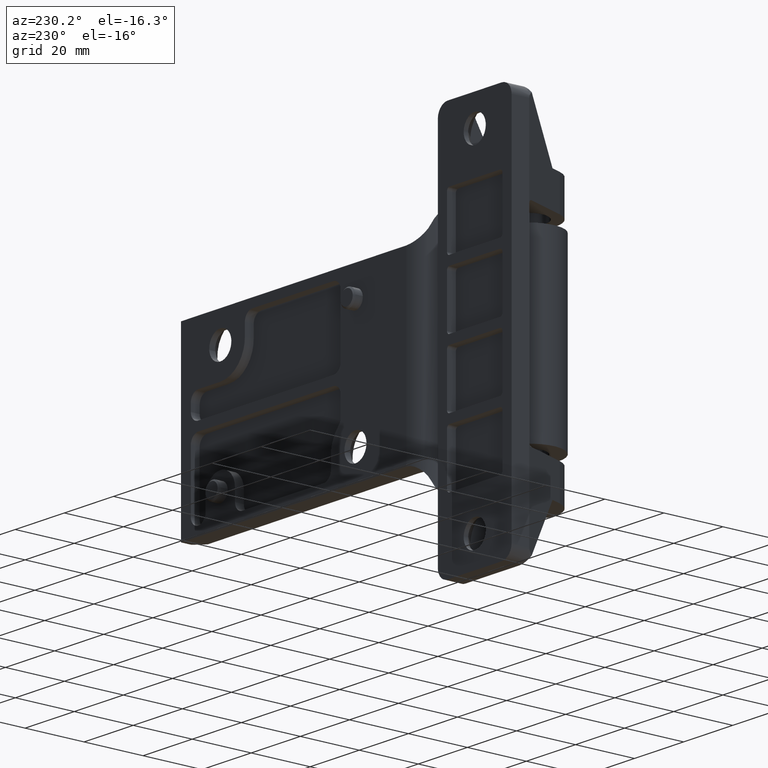
[diagram: clean part render]
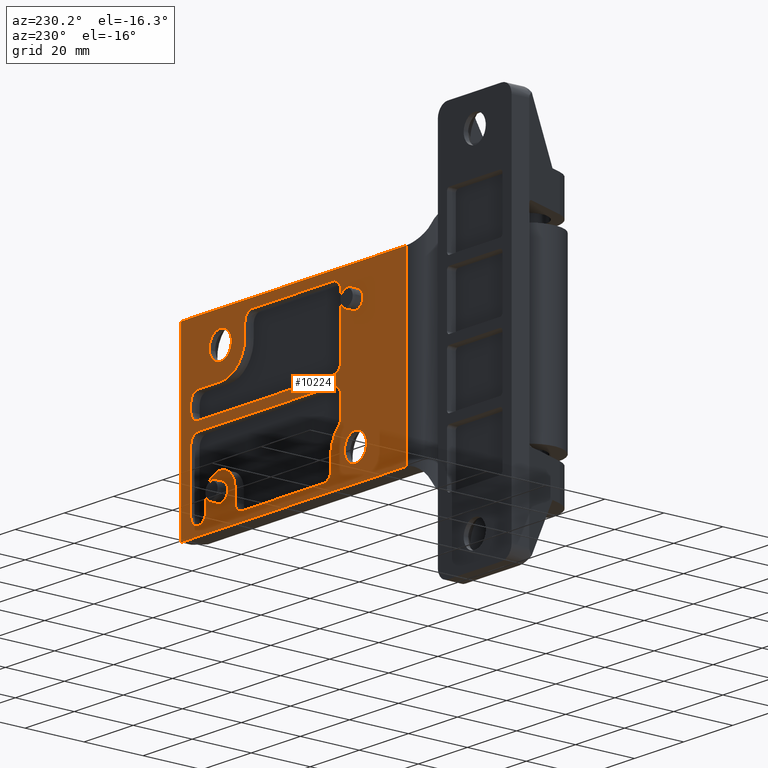
[diagram: same view with one face highlighted and labeled with its STEP entity id]
A machine part, auxiliary view. The second image highlights one B-rep face of the part: STEP entity #10224.
In plain terms, the highlighted face is a freeform B-spline surface patch.
Its self-contained STEP definition (entity closure, byte-faithful):
#6236=CARTESIAN_POINT('',(102.579676197070300,16.300000831205349,16.206336054302739));
#6237=VERTEX_POINT('',#6236);
#6243=CARTESIAN_POINT('',(105.000004882553000,16.300000831205349,24.500016668111929));
#6244=VERTEX_POINT('',#6243);
#6245=CARTESIAN_POINT('',(105.000004882553000,16.300000831205349,24.500016668111929));
#6246=CARTESIAN_POINT('',(100.500004668814230,16.300000831205342,24.500016668111925));
#6247=CARTESIAN_POINT('',(100.500004668814200,16.300000831205349,20.000016454373149));
#6248=CARTESIAN_POINT('',(100.500004668814210,16.300000831205356,17.533144885160251));
#6249=CARTESIAN_POINT('',(102.579676197070270,16.300000831205352,16.206336054302746));
#6257=(BOUNDED_CURVE()B_SPLINE_CURVE(2,(#6245,#6246,#6247,#6248,#6249),.UNSPECIFIED.,.F.,.U.)B_SPLINE_CURVE_WITH_KNOTS((3,2,3),(0.0,0.250000000000000,0.407950112626341),.UNSPECIFIED.)CURVE()GEOMETRIC_REPRESENTATION_ITEM()RATIONAL_B_SPLINE_CURVE((1.0,0.707106781186548,1.0,0.814949932403695,0.863729296954177))REPRESENTATION_ITEM(''));
#6258=EDGE_CURVE('',#6244,#6237,#6257,.T.);
#6260=CARTESIAN_POINT('',(109.486133097415110,16.300000831205349,19.646950506613479));
#6261=VERTEX_POINT('',#6260);
#6262=CARTESIAN_POINT('',(109.486133097415110,16.300000831205349,19.646950506613486));
#6263=CARTESIAN_POINT('',(109.500005096291840,16.300000831205345,19.823210964225211));
#6264=CARTESIAN_POINT('',(109.500005096291800,16.300000831205349,20.000016454373149));
#6265=CARTESIAN_POINT('',(109.500005096291790,16.300000831205342,24.500016668111925));
#6266=CARTESIAN_POINT('',(105.000004882553000,16.300000831205349,24.500016668111929));
#6274=(BOUNDED_CURVE()B_SPLINE_CURVE(2,(#6262,#6263,#6264,#6265,#6266),.UNSPECIFIED.,.F.,.U.)B_SPLINE_CURVE_WITH_KNOTS((3,2,3),(0.736331300616365,0.750000000000000,1.0),.UNSPECIFIED.)CURVE()GEOMETRIC_REPRESENTATION_ITEM()RATIONAL_B_SPLINE_CURVE((0.969723356137586,0.983986122562135,1.0,0.707106781186548,1.0))REPRESENTATION_ITEM(''));
#6275=EDGE_CURVE('',#6261,#6244,#6274,.T.);
#6379=CARTESIAN_POINT('',(105.000004882553000,16.300000831205349,15.500016240634370));
#6380=VERTEX_POINT('',#6379);
#6381=CARTESIAN_POINT('',(105.000004882553000,16.300000831205349,15.500016240634370));
#6382=CARTESIAN_POINT('',(109.159762292193800,16.300000831205349,15.500016240634379));
#6383=CARTESIAN_POINT('',(109.486133097415110,16.300000831205349,19.646950506613486));
#6391=(BOUNDED_CURVE()B_SPLINE_CURVE(2,(#6381,#6382,#6383),.UNSPECIFIED.,.F.,.U.)B_SPLINE_CURVE_WITH_KNOTS((3,3),(0.500000000000000,0.736331300616366),.UNSPECIFIED.)CURVE()GEOMETRIC_REPRESENTATION_ITEM()RATIONAL_B_SPLINE_CURVE((1.0,0.723120658624412,0.969723356137588))REPRESENTATION_ITEM(''));
#6392=EDGE_CURVE('',#6380,#6261,#6391,.T.);
#6394=CARTESIAN_POINT('',(102.579676197070270,16.300000831205352,16.206336054302746));
#6395=CARTESIAN_POINT('',(103.686778570951690,16.300000831205349,15.500016240634377));
#6396=CARTESIAN_POINT('',(105.000004882553000,16.300000831205349,15.500016240634370));
#6404=(BOUNDED_CURVE()B_SPLINE_CURVE(2,(#6394,#6395,#6396),.UNSPECIFIED.,.F.,.U.)B_SPLINE_CURVE_WITH_KNOTS((3,3),(0.407950112626341,0.500000000000000),.UNSPECIFIED.)CURVE()GEOMETRIC_REPRESENTATION_ITEM()RATIONAL_B_SPLINE_CURVE((0.863729296954177,0.892156848782853,1.0))REPRESENTATION_ITEM(''));
#6405=EDGE_CURVE('',#6237,#6380,#6404,.T.);
#6580=CARTESIAN_POINT('',(47.579673584710449,16.300000831205349,-23.793665845595310));
#6581=VERTEX_POINT('',#6580);
#6587=CARTESIAN_POINT('',(50.000002270193193,16.300000831205349,-15.499985231786120));
#6588=VERTEX_POINT('',#6587);
#6589=CARTESIAN_POINT('',(50.000002270193193,16.300000831205349,-15.499985231786120));
#6590=CARTESIAN_POINT('',(45.500002056454413,16.300000831205342,-15.499985231786123));
#6591=CARTESIAN_POINT('',(45.500002056454413,16.300000831205349,-19.999985445524899));
#6592=CARTESIAN_POINT('',(45.500002056454413,16.300000831205345,-22.466857014737805));
#6593=CARTESIAN_POINT('',(47.579673584710449,16.300000831205352,-23.793665845595310));
#6601=(BOUNDED_CURVE()B_SPLINE_CURVE(2,(#6589,#6590,#6591,#6592,#6593),.UNSPECIFIED.,.F.,.U.)B_SPLINE_CURVE_WITH_KNOTS((3,2,3),(0.0,0.250000000000000,0.407950112626342),.UNSPECIFIED.)CURVE()GEOMETRIC_REPRESENTATION_ITEM()RATIONAL_B_SPLINE_CURVE((1.0,0.707106781186548,1.0,0.814949932403694,0.863729296954177))REPRESENTATION_ITEM(''));
#6602=EDGE_CURVE('',#6588,#6581,#6601,.T.);
#6604=CARTESIAN_POINT('',(54.486130485055277,16.300000831205349,-20.353051393284570));
#6605=VERTEX_POINT('',#6604);
#6606=CARTESIAN_POINT('',(54.486130485055284,16.300000831205356,-20.353051393284577));
#6607=CARTESIAN_POINT('',(54.500002483931986,16.300000831205349,-20.176790935672852));
#6608=CARTESIAN_POINT('',(54.500002483931979,16.300000831205349,-19.999985445524899));
#6609=CARTESIAN_POINT('',(54.500002483931986,16.300000831205342,-15.499985231786123));
#6610=CARTESIAN_POINT('',(50.000002270193193,16.300000831205349,-15.499985231786120));
#6618=(BOUNDED_CURVE()B_SPLINE_CURVE(2,(#6606,#6607,#6608,#6609,#6610),.UNSPECIFIED.,.F.,.U.)B_SPLINE_CURVE_WITH_KNOTS((3,2,3),(0.736331300616365,0.750000000000000,1.0),.UNSPECIFIED.)CURVE()GEOMETRIC_REPRESENTATION_ITEM()RATIONAL_B_SPLINE_CURVE((0.969723356137586,0.983986122562134,1.0,0.707106781186548,1.0))REPRESENTATION_ITEM(''));
#6619=EDGE_CURVE('',#6605,#6588,#6618,.T.);
#6723=CARTESIAN_POINT('',(50.000002270193193,16.300000831205349,-24.499985659263679));
#6724=VERTEX_POINT('',#6723);
#6725=CARTESIAN_POINT('',(50.000002270193193,16.300000831205349,-24.499985659263679));
#6726=CARTESIAN_POINT('',(54.159759679833947,16.300000831205345,-24.499985659263679));
#6727=CARTESIAN_POINT('',(54.486130485055277,16.300000831205352,-20.353051393284577));
#6735=(BOUNDED_CURVE()B_SPLINE_CURVE(2,(#6725,#6726,#6727),.UNSPECIFIED.,.F.,.U.)B_SPLINE_CURVE_WITH_KNOTS((3,3),(0.500000000000000,0.736331300616364),.UNSPECIFIED.)CURVE()GEOMETRIC_REPRESENTATION_ITEM()RATIONAL_B_SPLINE_CURVE((1.0,0.723120658624414,0.969723356137583))REPRESENTATION_ITEM(''));
#6736=EDGE_CURVE('',#6724,#6605,#6735,.T.);
#6738=CARTESIAN_POINT('',(47.579673584710442,16.300000831205349,-23.793665845595317));
#6739=CARTESIAN_POINT('',(48.686775958591888,16.300000831205352,-24.499985659263682));
#6740=CARTESIAN_POINT('',(50.000002270193193,16.300000831205349,-24.499985659263679));
#6748=(BOUNDED_CURVE()B_SPLINE_CURVE(2,(#6738,#6739,#6740),.UNSPECIFIED.,.F.,.U.)B_SPLINE_CURVE_WITH_KNOTS((3,3),(0.407950112626342,0.500000000000000),.UNSPECIFIED.)CURVE()GEOMETRIC_REPRESENTATION_ITEM()RATIONAL_B_SPLINE_CURVE((0.863729296954177,0.892156848782854,1.0))REPRESENTATION_ITEM(''));
#6749=EDGE_CURVE('',#6581,#6724,#6748,.T.);
#7111=CARTESIAN_POINT('',(107.990757025791300,16.300000831205349,-20.235362744067761));
#7112=VERTEX_POINT('',#7111);
#7118=CARTESIAN_POINT('',(105.000004882553000,16.300000831205349,-22.999985588017228));
#7119=VERTEX_POINT('',#7118);
#7120=CARTESIAN_POINT('',(105.000004882553000,16.300000831205349,-22.999985588017228));
#7121=CARTESIAN_POINT('',(107.773176488912260,16.300000831205359,-22.999985588017228));
#7122=CARTESIAN_POINT('',(107.990757025791300,16.300000831205356,-20.235362744067768));
#7130=(BOUNDED_CURVE()B_SPLINE_CURVE(2,(#7120,#7121,#7122),.UNSPECIFIED.,.F.,.U.)B_SPLINE_CURVE_WITH_KNOTS((3,3),(0.0,0.236331300612189),.UNSPECIFIED.)CURVE()GEOMETRIC_REPRESENTATION_ITEM()RATIONAL_B_SPLINE_CURVE((1.0,0.723120658629306,0.969723356128870))REPRESENTATION_ITEM(''));
#7131=EDGE_CURVE('',#7119,#7112,#7130,.T.);
#7133=CARTESIAN_POINT('',(102.009252739314700,16.300000831205349,-19.764608146982031));
#7134=VERTEX_POINT('',#7133);
#7135=CARTESIAN_POINT('',(102.009252739314690,16.300000831205349,-19.764608146982031));
#7136=CARTESIAN_POINT('',(102.000004740060720,16.300000831205352,-19.882115118723014));
#7137=CARTESIAN_POINT('',(102.000004740060700,16.300000831205349,-19.999985445524899));
#7138=CARTESIAN_POINT('',(102.000004740060690,16.300000831205342,-22.999985588017232));
#7139=CARTESIAN_POINT('',(105.000004882553000,16.300000831205349,-22.999985588017228));
#7147=(BOUNDED_CURVE()B_SPLINE_CURVE(2,(#7135,#7136,#7137,#7138,#7139),.UNSPECIFIED.,.F.,.U.)B_SPLINE_CURVE_WITH_KNOTS((3,2,3),(0.736331300612188,0.750000000000000,1.0),.UNSPECIFIED.)CURVE()GEOMETRIC_REPRESENTATION_ITEM()RATIONAL_B_SPLINE_CURVE((0.969723356128870,0.983986122557242,1.0,0.707106781186548,1.0))REPRESENTATION_ITEM(''));
#7148=EDGE_CURVE('',#7134,#7119,#7147,.T.);
#7181=CARTESIAN_POINT('',(105.000004882553000,16.300000831205349,-16.999985303032570));
#7182=VERTEX_POINT('',#7181);
#7183=CARTESIAN_POINT('',(105.000004882553000,16.300000831205349,-16.999985303032570));
#7184=CARTESIAN_POINT('',(102.226833276193740,16.300000831205345,-16.999985303032570));
#7185=CARTESIAN_POINT('',(102.009252739314690,16.300000831205356,-19.764608146982034));
#7193=(BOUNDED_CURVE()B_SPLINE_CURVE(2,(#7183,#7184,#7185),.UNSPECIFIED.,.F.,.U.)B_SPLINE_CURVE_WITH_KNOTS((3,3),(0.500000000000000,0.736331300612189),.UNSPECIFIED.)CURVE()GEOMETRIC_REPRESENTATION_ITEM()RATIONAL_B_SPLINE_CURVE((1.0,0.723120658629305,0.969723356128871))REPRESENTATION_ITEM(''));
#7194=EDGE_CURVE('',#7182,#7134,#7193,.T.);
#7196=CARTESIAN_POINT('',(107.990757025791300,16.300000831205345,-20.235362744067768));
#7197=CARTESIAN_POINT('',(108.000005025045350,16.300000831205349,-20.117855772326788));
#7198=CARTESIAN_POINT('',(108.000005025045300,16.300000831205349,-19.999985445524899));
#7199=CARTESIAN_POINT('',(108.000005025045330,16.300000831205342,-16.999985303032574));
#7200=CARTESIAN_POINT('',(105.000004882553000,16.300000831205349,-16.999985303032570));
#7208=(BOUNDED_CURVE()B_SPLINE_CURVE(2,(#7196,#7197,#7198,#7199,#7200),.UNSPECIFIED.,.F.,.U.)B_SPLINE_CURVE_WITH_KNOTS((3,2,3),(0.236331300612188,0.250000000000000,0.500000000000000),.UNSPECIFIED.)CURVE()GEOMETRIC_REPRESENTATION_ITEM()RATIONAL_B_SPLINE_CURVE((0.969723356128870,0.983986122557242,1.0,0.707106781186548,1.0))REPRESENTATION_ITEM(''));
#7209=EDGE_CURVE('',#7112,#7182,#7208,.T.);
#7443=CARTESIAN_POINT('',(52.990754413431517,16.300000831205349,19.764639155830341));
#7444=VERTEX_POINT('',#7443);
#7450=CARTESIAN_POINT('',(50.000002270193193,16.300000831205349,17.000016311880870));
#7451=VERTEX_POINT('',#7450);
#7452=CARTESIAN_POINT('',(50.000002270193193,16.300000831205349,17.000016311880870));
#7453=CARTESIAN_POINT('',(52.773173876552441,16.300000831205342,17.000016311880874));
#7454=CARTESIAN_POINT('',(52.990754413431524,16.300000831205345,19.764639155830334));
#7462=(BOUNDED_CURVE()B_SPLINE_CURVE(2,(#7452,#7453,#7454),.UNSPECIFIED.,.F.,.U.)B_SPLINE_CURVE_WITH_KNOTS((3,3),(0.0,0.236331300612188),.UNSPECIFIED.)CURVE()GEOMETRIC_REPRESENTATION_ITEM()RATIONAL_B_SPLINE_CURVE((1.0,0.723120658629306,0.969723356128870))REPRESENTATION_ITEM(''));
#7463=EDGE_CURVE('',#7451,#7444,#7462,.T.);
#7465=CARTESIAN_POINT('',(47.009250126954868,16.300000831205349,20.235393752916071));
#7466=VERTEX_POINT('',#7465);
#7467=CARTESIAN_POINT('',(47.009250126954868,16.300000831205352,20.235393752916067));
#7468=CARTESIAN_POINT('',(47.000002127700867,16.300000831205352,20.117886781175091));
#7469=CARTESIAN_POINT('',(47.000002127700867,16.300000831205349,20.000016454373199));
#7470=CARTESIAN_POINT('',(47.000002127700867,16.300000831205342,17.000016311880877));
#7471=CARTESIAN_POINT('',(50.000002270193193,16.300000831205349,17.000016311880870));
#7479=(BOUNDED_CURVE()B_SPLINE_CURVE(2,(#7467,#7468,#7469,#7470,#7471),.UNSPECIFIED.,.F.,.U.)B_SPLINE_CURVE_WITH_KNOTS((3,2,3),(0.736331300612188,0.750000000000000,1.0),.UNSPECIFIED.)CURVE()GEOMETRIC_REPRESENTATION_ITEM()RATIONAL_B_SPLINE_CURVE((0.969723356128870,0.983986122557241,1.0,0.707106781186548,1.0))REPRESENTATION_ITEM(''));
#7480=EDGE_CURVE('',#7466,#7451,#7479,.T.);
#7513=CARTESIAN_POINT('',(50.000002270193193,16.300000831205349,23.000016596865532));
#7514=VERTEX_POINT('',#7513);
#7515=CARTESIAN_POINT('',(50.000002270193193,16.300000831205349,23.000016596865532));
#7516=CARTESIAN_POINT('',(47.226830663833944,16.300000831205345,23.000016596865532));
#7517=CARTESIAN_POINT('',(47.009250126954875,16.300000831205356,20.235393752916067));
#7525=(BOUNDED_CURVE()B_SPLINE_CURVE(2,(#7515,#7516,#7517),.UNSPECIFIED.,.F.,.U.)B_SPLINE_CURVE_WITH_KNOTS((3,3),(0.500000000000000,0.736331300612189),.UNSPECIFIED.)CURVE()GEOMETRIC_REPRESENTATION_ITEM()RATIONAL_B_SPLINE_CURVE((1.0,0.723120658629305,0.969723356128871))REPRESENTATION_ITEM(''));
#7526=EDGE_CURVE('',#7514,#7466,#7525,.T.);
#7528=CARTESIAN_POINT('',(52.990754413431532,16.300000831205349,19.764639155830334));
#7529=CARTESIAN_POINT('',(53.000002412685518,16.300000831205349,19.882146127571307));
#7530=CARTESIAN_POINT('',(53.000002412685532,16.300000831205349,20.000016454373199));
#7531=CARTESIAN_POINT('',(53.000002412685525,16.300000831205342,23.000016596865535));
#7532=CARTESIAN_POINT('',(50.000002270193193,16.300000831205349,23.000016596865532));
#7540=(BOUNDED_CURVE()B_SPLINE_CURVE(2,(#7528,#7529,#7530,#7531,#7532),.UNSPECIFIED.,.F.,.U.)B_SPLINE_CURVE_WITH_KNOTS((3,2,3),(0.236331300612188,0.250000000000000,0.500000000000000),.UNSPECIFIED.)CURVE()GEOMETRIC_REPRESENTATION_ITEM()RATIONAL_B_SPLINE_CURVE((0.969723356128870,0.983986122557242,1.0,0.707106781186548,1.0))REPRESENTATION_ITEM(''));
#7541=EDGE_CURVE('',#7444,#7514,#7540,.T.);
#7878=CARTESIAN_POINT('',(105.000004882677800,16.300000831205299,9.999984970550971));
#7879=VERTEX_POINT('',#7878);
#7880=CARTESIAN_POINT('',(114.000005310155000,16.300000831205349,9.999984970551029));
#7881=VERTEX_POINT('',#7880);
#7882=CARTESIAN_POINT('',(105.000004882677800,16.300000831205299,9.999984970550971));
#7883=CARTESIAN_POINT('',(114.000005310155000,16.300000831205349,9.999984970551029));
#7884=QUASI_UNIFORM_CURVE('',1,(#7882,#7883),.UNSPECIFIED.,.F.,.U.);
#7885=EDGE_CURVE('',#7879,#7881,#7884,.T.);
#7915=CARTESIAN_POINT('',(117.000005452647200,16.300000831205299,6.999984828058531));
#7916=VERTEX_POINT('',#7915);
#7917=CARTESIAN_POINT('',(114.000005310155000,16.300000831205299,9.999984970550941));
#7918=CARTESIAN_POINT('',(115.242646056296520,16.300000831205299,9.999984970550941));
#7919=CARTESIAN_POINT('',(116.121325754471900,16.300000831205299,9.121305272375512));
#7920=CARTESIAN_POINT('',(117.000005452647230,16.300000831205299,8.242625574200154));
#7921=CARTESIAN_POINT('',(117.000005452647200,16.300000831205299,6.999984828058700));
#7929=(BOUNDED_CURVE()B_SPLINE_CURVE(2,(#7917,#7918,#7919,#7920,#7921),.UNSPECIFIED.,.F.,.U.)B_SPLINE_CURVE_WITH_KNOTS((3,2,3),(0.0,0.500000000000000,1.0),.UNSPECIFIED.)CURVE()GEOMETRIC_REPRESENTATION_ITEM()RATIONAL_B_SPLINE_CURVE((1.0,0.923879532511281,1.0,0.923879532511281,1.0))REPRESENTATION_ITEM(''));
#7930=EDGE_CURVE('',#7881,#7916,#7929,.T.);
#7947=CARTESIAN_POINT('',(117.000005452647400,16.300000831205299,4.499984709315015));
#7948=VERTEX_POINT('',#7947);
#7949=CARTESIAN_POINT('',(117.000005452647200,16.300000831205299,6.999984828058531));
#7950=CARTESIAN_POINT('',(117.000005452647400,16.300000831205299,4.499984709315015));
#7951=QUASI_UNIFORM_CURVE('',1,(#7949,#7950),.UNSPECIFIED.,.F.,.U.);
#7952=EDGE_CURVE('',#7916,#7948,#7951,.T.);
#7978=CARTESIAN_POINT('',(114.000005310155000,16.300000831205299,1.499984566822676));
#7979=VERTEX_POINT('',#7978);
#7980=CARTESIAN_POINT('',(117.000005452647300,16.300000831205299,4.499984709315015));
#7981=CARTESIAN_POINT('',(117.000005452647340,16.300000831205303,1.499984566822675));
#7982=CARTESIAN_POINT('',(114.000005310155000,16.300000831205299,1.499984566822675));
#7990=(BOUNDED_CURVE()B_SPLINE_CURVE(2,(#7980,#7981,#7982),.UNSPECIFIED.,.F.,.U.)CURVE()GEOMETRIC_REPRESENTATION_ITEM()QUASI_UNIFORM_CURVE()RATIONAL_B_SPLINE_CURVE((1.0,0.707106781186548,1.0))REPRESENTATION_ITEM(''));
#7991=EDGE_CURVE('',#7948,#7979,#7990,.T.);
#8008=CARTESIAN_POINT('',(59.000002697795203,16.300000831205299,1.499984566822576));
#8009=VERTEX_POINT('',#8008);
#8010=CARTESIAN_POINT('',(114.000005310155000,16.300000831205299,1.499984566822676));
#8011=CARTESIAN_POINT('',(59.000002697795203,16.300000831205299,1.499984566822576));
#8012=QUASI_UNIFORM_CURVE('',1,(#8010,#8011),.UNSPECIFIED.,.F.,.U.);
#8013=EDGE_CURVE('',#7979,#8009,#8012,.T.);
#8039=CARTESIAN_POINT('',(56.000002555302800,16.300000831205299,4.499984709314981));
#8040=VERTEX_POINT('',#8039);
#8041=CARTESIAN_POINT('',(59.000002697795203,16.300000831205299,1.499984566822556));
#8042=CARTESIAN_POINT('',(56.000002555302785,16.300000831205303,1.499984566822556));
#8043=CARTESIAN_POINT('',(56.000002555302771,16.300000831205299,4.499984709314986));
#8051=(BOUNDED_CURVE()B_SPLINE_CURVE(2,(#8041,#8042,#8043),.UNSPECIFIED.,.F.,.U.)CURVE()GEOMETRIC_REPRESENTATION_ITEM()QUASI_UNIFORM_CURVE()RATIONAL_B_SPLINE_CURVE((1.0,0.707106781186548,1.0))REPRESENTATION_ITEM(''));
#8052=EDGE_CURVE('',#8009,#8040,#8051,.T.);
#8069=CARTESIAN_POINT('',(56.000002555302800,16.300000831205299,23.999985635515198));
#8070=VERTEX_POINT('',#8069);
#8071=CARTESIAN_POINT('',(56.000002555302800,16.300000831205299,4.499984709314981));
#8072=CARTESIAN_POINT('',(56.000002555302800,16.300000831205299,23.999985635515198));
#8073=QUASI_UNIFORM_CURVE('',1,(#8071,#8072),.UNSPECIFIED.,.F.,.U.);
#8074=EDGE_CURVE('',#8040,#8070,#8073,.T.);
#8100=CARTESIAN_POINT('',(59.000002697795097,16.300000831205299,26.999985778007549));
#8101=VERTEX_POINT('',#8100);
#8102=CARTESIAN_POINT('',(56.000002555302743,16.300000831205299,23.999985635515198));
#8103=CARTESIAN_POINT('',(56.000002555302743,16.300000831205303,26.999985778007559));
#8104=CARTESIAN_POINT('',(59.000002697795097,16.300000831205299,26.999985778007549));
#8112=(BOUNDED_CURVE()B_SPLINE_CURVE(2,(#8102,#8103,#8104),.UNSPECIFIED.,.F.,.U.)CURVE()GEOMETRIC_REPRESENTATION_ITEM()QUASI_UNIFORM_CURVE()RATIONAL_B_SPLINE_CURVE((1.0,0.707106781186548,1.0))REPRESENTATION_ITEM(''));
#8113=EDGE_CURVE('',#8070,#8101,#8112,.T.);
#8130=CARTESIAN_POINT('',(92.000004265211103,16.300000831205299,26.999985778007652));
#8131=VERTEX_POINT('',#8130);
#8132=CARTESIAN_POINT('',(59.000002697795097,16.300000831205299,26.999985778007549));
#8133=CARTESIAN_POINT('',(92.000004265211103,16.300000831205299,26.999985778007652));
#8134=QUASI_UNIFORM_CURVE('',1,(#8132,#8133),.UNSPECIFIED.,.F.,.U.);
#8135=EDGE_CURVE('',#8101,#8131,#8134,.T.);
#8161=CARTESIAN_POINT('',(95.000004407703400,16.300000831205299,23.999985635515252));
#8162=VERTEX_POINT('',#8161);
#8163=CARTESIAN_POINT('',(92.000004265211103,16.300000831205299,26.999985778007591));
#8164=CARTESIAN_POINT('',(95.000004407703443,16.300000831205303,26.999985778007591));
#8165=CARTESIAN_POINT('',(95.000004407703443,16.300000831205299,23.999985635515252));
#8173=(BOUNDED_CURVE()B_SPLINE_CURVE(2,(#8163,#8164,#8165),.UNSPECIFIED.,.F.,.U.)CURVE()GEOMETRIC_REPRESENTATION_ITEM()QUASI_UNIFORM_CURVE()RATIONAL_B_SPLINE_CURVE((1.0,0.707106781186548,1.0))REPRESENTATION_ITEM(''));
#8174=EDGE_CURVE('',#8131,#8162,#8173,.T.);
#8191=CARTESIAN_POINT('',(95.000004407703400,16.300000831205299,19.999985445742951));
#8192=VERTEX_POINT('',#8191);
#8193=CARTESIAN_POINT('',(95.000004407703400,16.300000831205299,23.999985635515252));
#8194=CARTESIAN_POINT('',(95.000004407703400,16.300000831205299,19.999985445742951));
#8195=QUASI_UNIFORM_CURVE('',1,(#8193,#8194),.UNSPECIFIED.,.F.,.U.);
#8196=EDGE_CURVE('',#8162,#8192,#8195,.T.);
#8222=CARTESIAN_POINT('',(105.000004882678000,16.300000831205299,9.999984970551028));
#8223=CARTESIAN_POINT('',(100.857869062142430,16.300000831205306,9.999984970551028));
#8224=CARTESIAN_POINT('',(97.928936734877908,16.300000831205299,12.928917297879300));
#8225=CARTESIAN_POINT('',(95.000004407613446,16.300000831205306,15.857849625207493));
#8226=CARTESIAN_POINT('',(95.000004407703486,16.300000831205299,19.999985445742951));
#8234=(BOUNDED_CURVE()B_SPLINE_CURVE(2,(#8222,#8223,#8224,#8225,#8226),.UNSPECIFIED.,.F.,.U.)B_SPLINE_CURVE_WITH_KNOTS((3,2,3),(0.0,0.500000000000000,1.0),.UNSPECIFIED.)CURVE()GEOMETRIC_REPRESENTATION_ITEM()RATIONAL_B_SPLINE_CURVE((1.0,0.923879532509205,1.0,0.923879532509205,1.0))REPRESENTATION_ITEM(''));
#8235=EDGE_CURVE('',#7879,#8192,#8234,.T.);
#8435=CARTESIAN_POINT('',(114.000005310155000,16.300000831205349,-1.500015575669745));
#8436=VERTEX_POINT('',#8435);
#8437=CARTESIAN_POINT('',(59.000002697795203,16.300000831205299,-1.500015575669805));
#8438=VERTEX_POINT('',#8437);
#8439=CARTESIAN_POINT('',(114.000005310155000,16.300000831205349,-1.500015575669745));
#8440=CARTESIAN_POINT('',(59.000002697795203,16.300000831205299,-1.500015575669805));
#8441=QUASI_UNIFORM_CURVE('',1,(#8439,#8440),.UNSPECIFIED.,.F.,.U.);
#8442=EDGE_CURVE('',#8436,#8438,#8441,.T.);
#8472=CARTESIAN_POINT('',(56.000002555302899,16.300000831205299,-4.500015718162230));
#8473=VERTEX_POINT('',#8472);
#8474=CARTESIAN_POINT('',(56.000002555302849,16.300000831205299,-4.500015718162221));
#8475=CARTESIAN_POINT('',(56.000002555302849,16.300000831205306,-3.257374972020677));
#8476=CARTESIAN_POINT('',(56.878682253478253,16.300000831205299,-2.378695273845279));
#8477=CARTESIAN_POINT('',(57.757361951653650,16.300000831205306,-1.500015575669876));
#8478=CARTESIAN_POINT('',(59.000002697795203,16.300000831205299,-1.500015575669875));
#8486=(BOUNDED_CURVE()B_SPLINE_CURVE(2,(#8474,#8475,#8476,#8477,#8478),.UNSPECIFIED.,.F.,.U.)B_SPLINE_CURVE_WITH_KNOTS((3,2,3),(0.0,0.500000000000000,1.0),.UNSPECIFIED.)CURVE()GEOMETRIC_REPRESENTATION_ITEM()RATIONAL_B_SPLINE_CURVE((1.0,0.923879532511287,1.0,0.923879532511287,1.0))REPRESENTATION_ITEM(''));
#8487=EDGE_CURVE('',#8473,#8438,#8486,.T.);
#8504=CARTESIAN_POINT('',(56.000002555302899,16.300000831205299,-10.619184489157020));
#8505=VERTEX_POINT('',#8504);
#8506=CARTESIAN_POINT('',(56.000002555302899,16.300000831205299,-4.500015718162230));
#8507=CARTESIAN_POINT('',(56.000002555302899,16.300000831205299,-10.619184489157020));
#8508=QUASI_UNIFORM_CURVE('',1,(#8506,#8507),.UNSPECIFIED.,.F.,.U.);
#8509=EDGE_CURVE('',#8473,#8505,#8508,.T.);
#8535=CARTESIAN_POINT('',(56.923079522225997,16.300000831205299,-12.783991865746740));
#8536=VERTEX_POINT('',#8535);
#8537=CARTESIAN_POINT('',(56.923079522225990,16.300000831205299,-12.783991865746749));
#8538=CARTESIAN_POINT('',(56.000002555302942,16.300000831205306,-11.898388848051464));
#8539=CARTESIAN_POINT('',(56.000002555302899,16.300000831205299,-10.619184489157020));
#8547=(BOUNDED_CURVE()B_SPLINE_CURVE(2,(#8537,#8538,#8539),.UNSPECIFIED.,.F.,.U.)CURVE()GEOMETRIC_REPRESENTATION_ITEM()QUASI_UNIFORM_CURVE()RATIONAL_B_SPLINE_CURVE((1.0,0.919866211007597,1.0))REPRESENTATION_ITEM(''));
#8548=EDGE_CURVE('',#8536,#8505,#8547,.T.);
#8574=CARTESIAN_POINT('',(60.000002745292903,16.300000831205299,-20.000016454372901));
#8575=VERTEX_POINT('',#8574);
#8576=CARTESIAN_POINT('',(56.923079522225997,16.300000831205299,-12.783991865746740));
#8577=CARTESIAN_POINT('',(60.000002745292804,16.300000831205303,-15.736001924731385));
#8578=CARTESIAN_POINT('',(60.000002745292811,16.300000831205299,-20.000016454372950));
#8586=(BOUNDED_CURVE()B_SPLINE_CURVE(2,(#8576,#8577,#8578),.UNSPECIFIED.,.F.,.U.)CURVE()GEOMETRIC_REPRESENTATION_ITEM()QUASI_UNIFORM_CURVE()RATIONAL_B_SPLINE_CURVE((1.0,0.919866211007821,1.0))REPRESENTATION_ITEM(''));
#8587=EDGE_CURVE('',#8536,#8575,#8586,.T.);
#8604=CARTESIAN_POINT('',(60.000002745292697,16.300000831205299,-24.000016644362400));
#8605=VERTEX_POINT('',#8604);
#8606=CARTESIAN_POINT('',(60.000002745292903,16.300000831205299,-20.000016454372901));
#8607=CARTESIAN_POINT('',(60.000002745292697,16.300000831205299,-24.000016644362400));
#8608=QUASI_UNIFORM_CURVE('',1,(#8606,#8607),.UNSPECIFIED.,.F.,.U.);
#8609=EDGE_CURVE('',#8575,#8605,#8608,.T.);
#8635=CARTESIAN_POINT('',(63.000002887785399,16.300000831205299,-27.000016786854850));
#8636=VERTEX_POINT('',#8635);
#8637=CARTESIAN_POINT('',(63.000002887785399,16.300000831205299,-27.000016786854822));
#8638=CARTESIAN_POINT('',(60.000002745292988,16.300000831205303,-27.000016786854818));
#8639=CARTESIAN_POINT('',(60.000002745292697,16.300000831205299,-24.000016644362400));
#8647=(BOUNDED_CURVE()B_SPLINE_CURVE(2,(#8637,#8638,#8639),.UNSPECIFIED.,.F.,.U.)CURVE()GEOMETRIC_REPRESENTATION_ITEM()QUASI_UNIFORM_CURVE()RATIONAL_B_SPLINE_CURVE((1.0,0.707106781186548,1.0))REPRESENTATION_ITEM(''));
#8648=EDGE_CURVE('',#8636,#8605,#8647,.T.);
#8665=CARTESIAN_POINT('',(96.000004455201008,16.300000831205299,-27.000016786854751));
#8666=VERTEX_POINT('',#8665);
#8667=CARTESIAN_POINT('',(63.000002887785399,16.300000831205299,-27.000016786854850));
#8668=CARTESIAN_POINT('',(96.000004455201008,16.300000831205299,-27.000016786854751));
#8669=QUASI_UNIFORM_CURVE('',1,(#8667,#8668),.UNSPECIFIED.,.F.,.U.);
#8670=EDGE_CURVE('',#8636,#8666,#8669,.T.);
#8696=CARTESIAN_POINT('',(99.000004597693305,16.300000831205299,-24.000016644362550));
#8697=VERTEX_POINT('',#8696);
#8698=CARTESIAN_POINT('',(99.000004597693348,16.300000831205299,-24.000016644362550));
#8699=CARTESIAN_POINT('',(99.000004597693348,16.300000831205303,-27.000016786854889));
#8700=CARTESIAN_POINT('',(96.000004455201008,16.300000831205299,-27.000016786854889));
#8708=(BOUNDED_CURVE()B_SPLINE_CURVE(2,(#8698,#8699,#8700),.UNSPECIFIED.,.F.,.U.)CURVE()GEOMETRIC_REPRESENTATION_ITEM()QUASI_UNIFORM_CURVE()RATIONAL_B_SPLINE_CURVE((1.0,0.707106781186548,1.0))REPRESENTATION_ITEM(''));
#8709=EDGE_CURVE('',#8697,#8666,#8708,.T.);
#8726=CARTESIAN_POINT('',(99.000004597693206,16.300000831205299,-20.000016454372449));
#8727=VERTEX_POINT('',#8726);
#8728=CARTESIAN_POINT('',(99.000004597693305,16.300000831205299,-24.000016644362550));
#8729=CARTESIAN_POINT('',(99.000004597693206,16.300000831205299,-20.000016454372449));
#8730=QUASI_UNIFORM_CURVE('',1,(#8728,#8729),.UNSPECIFIED.,.F.,.U.);
#8731=EDGE_CURVE('',#8697,#8727,#8730,.T.);
#8761=CARTESIAN_POINT('',(111.000005167662590,16.300000831205299,-20.000016454957748));
#8762=VERTEX_POINT('',#8761);
#8763=CARTESIAN_POINT('',(99.000004597693376,16.300000831205299,-20.000016454372499));
#8764=CARTESIAN_POINT('',(99.000004597693376,16.300000831205299,-16.535914674568712));
#8765=CARTESIAN_POINT('',(102.000004740354700,16.300000831205299,-14.803863784764371));
#8766=CARTESIAN_POINT('',(105.000004883015930,16.300000831205299,-13.071812894960050));
#8767=CARTESIAN_POINT('',(108.000005025508200,16.300000831205299,-14.803863785057020));
#8768=CARTESIAN_POINT('',(111.000005168000540,16.300000831205299,-16.535914675153983));
#8769=CARTESIAN_POINT('',(111.000005167662710,16.300000831205299,-20.000016454957748));
#8777=(BOUNDED_CURVE()B_SPLINE_CURVE(2,(#8763,#8764,#8765,#8766,#8767,#8768,#8769),.UNSPECIFIED.,.F.,.U.)B_SPLINE_CURVE_WITH_KNOTS((3,2,2,3),(0.0,0.333333333333333,0.666666666666667,1.0),.UNSPECIFIED.)CURVE()GEOMETRIC_REPRESENTATION_ITEM()RATIONAL_B_SPLINE_CURVE((1.0,0.866025403776309,1.0,0.866025403776309,1.0,0.866025403776309,1.0))REPRESENTATION_ITEM(''));
#8778=EDGE_CURVE('',#8727,#8762,#8777,.T.);
#8795=CARTESIAN_POINT('',(111.000005167662590,16.300000831205299,-24.000016644362301));
#8796=VERTEX_POINT('',#8795);
#8797=CARTESIAN_POINT('',(111.000005167662590,16.300000831205299,-20.000016454957748));
#8798=CARTESIAN_POINT('',(111.000005167662590,16.300000831205299,-24.000016644362301));
#8799=QUASI_UNIFORM_CURVE('',1,(#8797,#8798),.UNSPECIFIED.,.F.,.U.);
#8800=EDGE_CURVE('',#8762,#8796,#8799,.T.);
#8830=CARTESIAN_POINT('',(117.000005452647400,16.300000831205299,-24.000016642929950));
#8831=VERTEX_POINT('',#8830);
#8832=CARTESIAN_POINT('',(117.000005452647300,16.300000831205299,-24.000016642929950));
#8833=CARTESIAN_POINT('',(117.000005453474370,16.300000831205299,-25.732067533085150));
#8834=CARTESIAN_POINT('',(115.500005382228200,16.300000831205299,-26.598092978640221));
#8835=CARTESIAN_POINT('',(114.000005310981960,16.300000831205299,-27.464118424195291));
#8836=CARTESIAN_POINT('',(112.500005239322310,16.300000831205299,-26.598092979356402));
#8837=CARTESIAN_POINT('',(111.000005167662680,16.300000831205299,-25.732067534517533));
#8838=CARTESIAN_POINT('',(111.000005167662710,16.300000831205299,-24.000016644362400));
#8846=(BOUNDED_CURVE()B_SPLINE_CURVE(2,(#8832,#8833,#8834,#8835,#8836,#8837,#8838),.UNSPECIFIED.,.F.,.U.)B_SPLINE_CURVE_WITH_KNOTS((3,2,2,3),(0.0,0.333333333333333,0.666666666666667,1.0),.UNSPECIFIED.)CURVE()GEOMETRIC_REPRESENTATION_ITEM()RATIONAL_B_SPLINE_CURVE((1.0,0.866025403744646,1.0,0.866025403744646,1.0,0.866025403744646,1.0))REPRESENTATION_ITEM(''));
#8847=EDGE_CURVE('',#8831,#8796,#8846,.T.);
#8864=CARTESIAN_POINT('',(117.000005452647400,16.300000831205299,-4.500015718161911));
#8865=VERTEX_POINT('',#8864);
#8866=CARTESIAN_POINT('',(117.000005452647400,16.300000831205299,-24.000016642929950));
#8867=CARTESIAN_POINT('',(117.000005452647400,16.300000831205299,-4.500015718161911));
#8868=QUASI_UNIFORM_CURVE('',1,(#8866,#8867),.UNSPECIFIED.,.F.,.U.);
#8869=EDGE_CURVE('',#8831,#8865,#8868,.T.);
#8895=CARTESIAN_POINT('',(114.000005310155000,16.300000831205299,-1.500015575669765));
#8896=CARTESIAN_POINT('',(117.000005452647230,16.300000831205303,-1.500015575669766));
#8897=CARTESIAN_POINT('',(117.000005452647200,16.300000831205299,-4.500015718161991));
#8905=(BOUNDED_CURVE()B_SPLINE_CURVE(2,(#8895,#8896,#8897),.UNSPECIFIED.,.F.,.U.)CURVE()GEOMETRIC_REPRESENTATION_ITEM()QUASI_UNIFORM_CURVE()RATIONAL_B_SPLINE_CURVE((1.0,0.707106781186547,1.0))REPRESENTATION_ITEM(''));
#8906=EDGE_CURVE('',#8436,#8865,#8905,.T.);
#9361=CARTESIAN_POINT('',(29.450001294119801,16.300000831205349,29.999985920499700));
#9362=VERTEX_POINT('',#9361);
#9363=CARTESIAN_POINT('',(29.269830265993050,16.300000831205349,30.002150763568199));
#9364=VERTEX_POINT('',#9363);
#9365=CARTESIAN_POINT('',(29.450001294119801,16.300000831205349,29.999985920499661));
#9366=CARTESIAN_POINT('',(29.359902776881974,16.300000831205345,29.999986141044737));
#9367=CARTESIAN_POINT('',(29.269830265993061,16.300000831205349,30.002150763568171));
#9375=(BOUNDED_CURVE()B_SPLINE_CURVE(2,(#9365,#9366,#9367),.UNSPECIFIED.,.F.,.U.)CURVE()GEOMETRIC_REPRESENTATION_ITEM()QUASI_UNIFORM_CURVE()RATIONAL_B_SPLINE_CURVE((1.0,0.999927851229854,1.0))REPRESENTATION_ITEM(''));
#9376=EDGE_CURVE('',#9362,#9364,#9375,.T.);
#9460=CARTESIAN_POINT('',(121.000005595014600,16.300000831205349,29.999985920499700));
#9461=VERTEX_POINT('',#9460);
#9467=CARTESIAN_POINT('',(29.450001294119801,16.300000831205349,29.999985920499700));
#9468=CARTESIAN_POINT('',(121.000005595014600,16.300000831205349,29.999985920499700));
#9469=QUASI_UNIFORM_CURVE('',1,(#9467,#9468),.UNSPECIFIED.,.F.,.U.);
#9470=EDGE_CURVE('',#9362,#9461,#9469,.T.);
#9713=CARTESIAN_POINT('',(29.450001294120451,16.300000831205349,-30.000016929347598));
#9714=VERTEX_POINT('',#9713);
#9720=CARTESIAN_POINT('',(121.000005595014800,16.300000831205349,-30.000016929343548));
#9721=VERTEX_POINT('',#9720);
#9722=CARTESIAN_POINT('',(121.000005595014800,16.300000831205349,-30.000016929343548));
#9723=CARTESIAN_POINT('',(29.450001294120451,16.300000831205349,-30.000016929347598));
#9724=QUASI_UNIFORM_CURVE('',1,(#9722,#9723),.UNSPECIFIED.,.F.,.U.);
#9725=EDGE_CURVE('',#9721,#9714,#9724,.T.);
#9757=CARTESIAN_POINT('',(29.269830265993050,16.300000831205349,-30.002181595855600));
#9758=VERTEX_POINT('',#9757);
#9776=CARTESIAN_POINT('',(29.269830265993050,16.300000831205349,-30.002181595855639));
#9777=CARTESIAN_POINT('',(29.359902777900682,16.300000831205349,-30.000017058104280));
#9778=CARTESIAN_POINT('',(29.450001294120451,16.300000831205349,-30.000016929347598));
#9786=(BOUNDED_CURVE()B_SPLINE_CURVE(2,(#9776,#9777,#9778),.UNSPECIFIED.,.F.,.U.)CURVE()GEOMETRIC_REPRESENTATION_ITEM()QUASI_UNIFORM_CURVE()RATIONAL_B_SPLINE_CURVE((1.0,0.999927850762155,1.0))REPRESENTATION_ITEM(''));
#9787=EDGE_CURVE('',#9758,#9714,#9786,.T.);
#9883=CARTESIAN_POINT('',(121.000005595014600,16.300000831205349,29.999985920499700));
#9884=CARTESIAN_POINT('',(121.000005595014800,16.300000831205349,-30.000016929343548));
#9885=QUASI_UNIFORM_CURVE('',1,(#9883,#9884),.UNSPECIFIED.,.F.,.U.);
#9886=EDGE_CURVE('',#9461,#9721,#9885,.T.);
#10111=CARTESIAN_POINT('',(29.269830265993050,16.300000831205349,30.002150763568199));
#10112=CARTESIAN_POINT('',(29.269830265993050,16.300000831205349,-30.002181595855600));
#10113=QUASI_UNIFORM_CURVE('',1,(#10111,#10112),.UNSPECIFIED.,.F.,.U.);
#10114=EDGE_CURVE('',#9364,#9758,#10113,.T.);
#10156=CARTESIAN_POINT('',(24.687908186099289,16.300000831205349,32.999368175176862));
#10157=CARTESIAN_POINT('',(24.687908186099289,16.300000831205349,-32.999399543944790));
#10158=CARTESIAN_POINT('',(125.581930135303590,16.300000831205349,32.999368175176862));
#10159=CARTESIAN_POINT('',(125.581930135303590,16.300000831205349,-32.999399543944790));
#10160=B_SPLINE_SURFACE_WITH_KNOTS('',1,1,((#10156,#10158),(#10157,#10159)),.UNSPECIFIED.,.F.,.F.,.U.,(2,2),(2,2),(0.0,65.998767719121645),(0.0,100.894021949204300),.UNSPECIFIED.);
#10161=ORIENTED_EDGE('',*,*,#9787,.F.);
#10162=ORIENTED_EDGE('',*,*,#10114,.F.);
#10163=ORIENTED_EDGE('',*,*,#9376,.F.);
#10164=ORIENTED_EDGE('',*,*,#9470,.T.);
#10165=ORIENTED_EDGE('',*,*,#9886,.T.);
#10166=ORIENTED_EDGE('',*,*,#9725,.T.);
#10167=EDGE_LOOP('',(#10161,#10162,#10163,#10164,#10165,#10166));
#10168=FACE_OUTER_BOUND('',#10167,.T.);
#10169=ORIENTED_EDGE('',*,*,#8196,.F.);
#10170=ORIENTED_EDGE('',*,*,#8174,.F.);
#10171=ORIENTED_EDGE('',*,*,#8135,.F.);
#10172=ORIENTED_EDGE('',*,*,#8113,.F.);
#10173=ORIENTED_EDGE('',*,*,#8074,.F.);
#10174=ORIENTED_EDGE('',*,*,#8052,.F.);
#10175=ORIENTED_EDGE('',*,*,#8013,.F.);
#10176=ORIENTED_EDGE('',*,*,#7991,.F.);
#10177=ORIENTED_EDGE('',*,*,#7952,.F.);
#10178=ORIENTED_EDGE('',*,*,#7930,.F.);
#10179=ORIENTED_EDGE('',*,*,#7885,.F.);
#10180=ORIENTED_EDGE('',*,*,#8235,.T.);
#10181=EDGE_LOOP('',(#10169,#10170,#10171,#10172,#10173,#10174,#10175,#10176,#10177,#10178,#10179,#10180));
#10182=FACE_BOUND('',#10181,.T.);
#10183=ORIENTED_EDGE('',*,*,#8906,.F.);
#10184=ORIENTED_EDGE('',*,*,#8442,.T.);
#10185=ORIENTED_EDGE('',*,*,#8487,.F.);
#10186=ORIENTED_EDGE('',*,*,#8509,.T.);
#10187=ORIENTED_EDGE('',*,*,#8548,.F.);
#10188=ORIENTED_EDGE('',*,*,#8587,.T.);
#10189=ORIENTED_EDGE('',*,*,#8609,.T.);
#10190=ORIENTED_EDGE('',*,*,#8648,.F.);
#10191=ORIENTED_EDGE('',*,*,#8670,.T.);
#10192=ORIENTED_EDGE('',*,*,#8709,.F.);
#10193=ORIENTED_EDGE('',*,*,#8731,.T.);
#10194=ORIENTED_EDGE('',*,*,#8778,.T.);
#10195=ORIENTED_EDGE('',*,*,#8800,.T.);
#10196=ORIENTED_EDGE('',*,*,#8847,.F.);
#10197=ORIENTED_EDGE('',*,*,#8869,.T.);
#10198=EDGE_LOOP('',(#10183,#10184,#10185,#10186,#10187,#10188,#10189,#10190,#10191,#10192,#10193,#10194,#10195,#10196,#10197));
#10199=FACE_BOUND('',#10198,.T.);
#10200=ORIENTED_EDGE('',*,*,#7526,.T.);
#10201=ORIENTED_EDGE('',*,*,#7480,.T.);
#10202=ORIENTED_EDGE('',*,*,#7463,.T.);
#10203=ORIENTED_EDGE('',*,*,#7541,.T.);
#10204=EDGE_LOOP('',(#10200,#10201,#10202,#10203));
#10205=FACE_BOUND('',#10204,.T.);
#10206=ORIENTED_EDGE('',*,*,#7194,.T.);
#10207=ORIENTED_EDGE('',*,*,#7148,.T.);
#10208=ORIENTED_EDGE('',*,*,#7131,.T.);
#10209=ORIENTED_EDGE('',*,*,#7209,.T.);
#10210=EDGE_LOOP('',(#10206,#10207,#10208,#10209));
#10211=FACE_BOUND('',#10210,.T.);
#10212=ORIENTED_EDGE('',*,*,#6736,.T.);
#10213=ORIENTED_EDGE('',*,*,#6619,.T.);
#10214=ORIENTED_EDGE('',*,*,#6602,.T.);
#10215=ORIENTED_EDGE('',*,*,#6749,.T.);
#10216=EDGE_LOOP('',(#10212,#10213,#10214,#10215));
#10217=FACE_BOUND('',#10216,.T.);
#10218=ORIENTED_EDGE('',*,*,#6392,.T.);
#10219=ORIENTED_EDGE('',*,*,#6275,.T.);
#10220=ORIENTED_EDGE('',*,*,#6258,.T.);
#10221=ORIENTED_EDGE('',*,*,#6405,.T.);
#10222=EDGE_LOOP('',(#10218,#10219,#10220,#10221));
#10223=FACE_BOUND('',#10222,.T.);
#10224=ADVANCED_FACE('',(#10168,#10182,#10199,#10205,#10211,#10217,#10223),#10160,.F.);